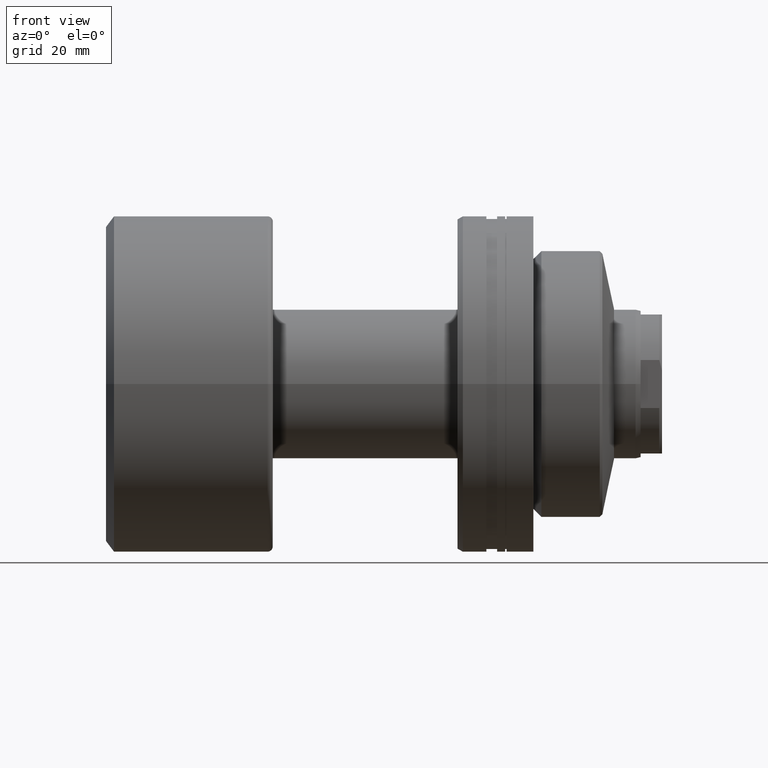
[diagram: clean part render]
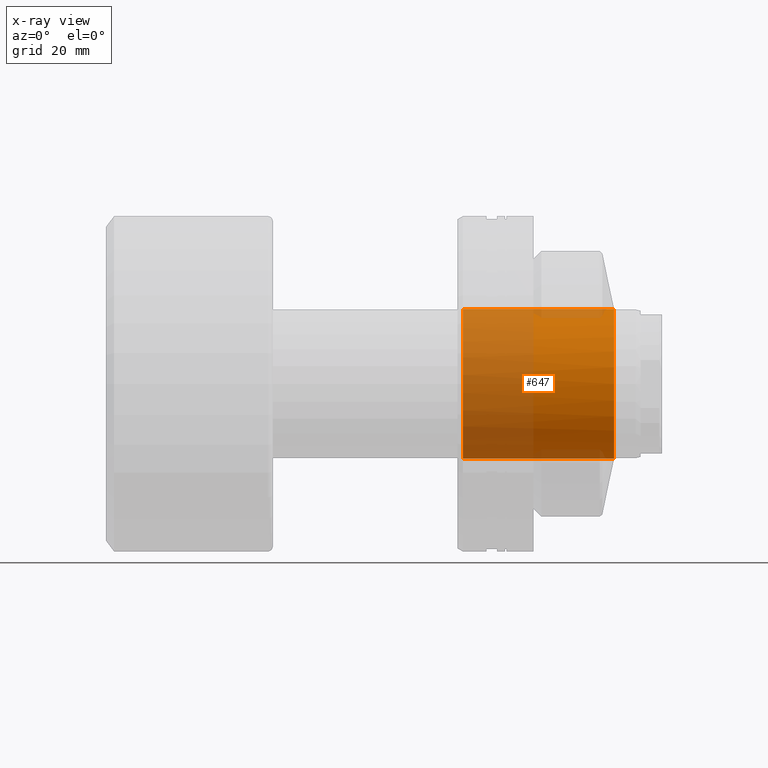
[diagram: x-ray — body ghosted, one internal face saturated and labeled with its STEP entity id]
A machine part, front view, then the same camera in x-ray: the body is ghosted and one INTERNAL B-rep face — a face not visible from any outside direction — is saturated and labeled: STEP entity #647.
In plain terms, the highlighted cylindrical surface (partial cylindrical patch) has radius 14 mm, axis along (1, 0, 0).
Its self-contained STEP definition (entity closure, byte-faithful):
#15 = EDGE_CURVE ( 'NONE', #2064, #1065, #684, .T. ) ;
#38 = CARTESIAN_POINT ( 'NONE',  ( -31.20000000000002061, 1.714505518806294835E-15, 14.00000000000000178 ) ) ;
#86 = DIRECTION ( 'NONE',  ( 0.000000000000000000, 0.000000000000000000, -1.000000000000000000 ) ) ;
#113 = FACE_OUTER_BOUND ( 'NONE', #657, .T. ) ;
#128 = CARTESIAN_POINT ( 'NONE',  ( -2.914285714286113826, 5.285403157867643656E-14, 0.000000000000000000 ) ) ;
#136 = AXIS2_PLACEMENT_3D ( 'NONE', #1539, #1021, #830 ) ;
#336 = CIRCLE ( 'NONE', #634, 14.00000000000000178 ) ;
#400 = CIRCLE ( 'NONE', #1552, 14.00000000000000178 ) ;
#423 = ORIENTED_EDGE ( 'NONE', *, *, #1071, .F. ) ;
#427 = EDGE_CURVE ( 'NONE', #1153, #1173, #400, .T. ) ;
#484 = CARTESIAN_POINT ( 'NONE',  ( -2.914285714286086737, -13.99999999999995026, 0.000000000000000000 ) ) ;
#490 = ORIENTED_EDGE ( 'NONE', *, *, #999, .F. ) ;
#632 = AXIS2_PLACEMENT_3D ( 'NONE', #1141, #1880, #811 ) ;
#634 = AXIS2_PLACEMENT_3D ( 'NONE', #128, #1401, #1551 ) ;
#647 = ADVANCED_FACE ( 'NONE', ( #113 ), #2029, .F. ) ;
#657 = EDGE_LOOP ( 'NONE', ( #1691, #1661, #490, #1641, #423 ) ) ;
#684 = CIRCLE ( 'NONE', #136, 14.00000000000000178 ) ;
#811 = DIRECTION ( 'NONE',  ( 0.000000000000000000, 0.000000000000000000, -1.000000000000000000 ) ) ;
#822 = CARTESIAN_POINT ( 'NONE',  ( -31.20000000000002061, 0.000000000000000000, 0.000000000000000000 ) ) ;
#830 = DIRECTION ( 'NONE',  ( 1.920586705545750655E-15, -1.000000000000000000, 0.000000000000000000 ) ) ;
#833 = DIRECTION ( 'NONE',  ( 1.000000000000000000, -0.000000000000000000, -0.000000000000000000 ) ) ;
#860 = CARTESIAN_POINT ( 'NONE',  ( -71.79797974644668557, 1.714505518806294835E-15, 14.00000000000000178 ) ) ;
#978 = LINE ( 'NONE', #860, #1165 ) ;
#999 = EDGE_CURVE ( 'NONE', #1065, #2088, #336, .T. ) ;
#1021 = DIRECTION ( 'NONE',  ( -1.000000000000000000, -1.931394410353556421E-15, 0.000000000000000000 ) ) ;
#1036 = CARTESIAN_POINT ( 'NONE',  ( -71.79797974644668557, 0.000000000000000000, -14.00000000000000178 ) ) ;
#1065 = VERTEX_POINT ( 'NONE', #484 ) ;
#1071 = EDGE_CURVE ( 'NONE', #1153, #2064, #2253, .T. ) ;
#1141 = CARTESIAN_POINT ( 'NONE',  ( -71.79797974644668557, 0.000000000000000000, 0.000000000000000000 ) ) ;
#1153 = VERTEX_POINT ( 'NONE', #1241 ) ;
#1165 = VECTOR ( 'NONE', #1685, 1000.000000000000000 ) ;
#1173 = VERTEX_POINT ( 'NONE', #38 ) ;
#1241 = CARTESIAN_POINT ( 'NONE',  ( -31.20000000000002061, 0.000000000000000000, -14.00000000000000178 ) ) ;
#1401 = DIRECTION ( 'NONE',  ( -1.000000000000000000, -1.931394410353556421E-15, 0.000000000000000000 ) ) ;
#1461 = EDGE_CURVE ( 'NONE', #1173, #2088, #978, .T. ) ;
#1539 = CARTESIAN_POINT ( 'NONE',  ( -2.914285714286113826, 5.285403157867643656E-14, 0.000000000000000000 ) ) ;
#1551 = DIRECTION ( 'NONE',  ( 1.920586705545750655E-15, -1.000000000000000000, 0.000000000000000000 ) ) ;
#1552 = AXIS2_PLACEMENT_3D ( 'NONE', #822, #1693, #86 ) ;
#1641 = ORIENTED_EDGE ( 'NONE', *, *, #15, .F. ) ;
#1661 = ORIENTED_EDGE ( 'NONE', *, *, #1461, .T. ) ;
#1685 = DIRECTION ( 'NONE',  ( 1.000000000000000000, -0.000000000000000000, -0.000000000000000000 ) ) ;
#1691 = ORIENTED_EDGE ( 'NONE', *, *, #427, .T. ) ;
#1693 = DIRECTION ( 'NONE',  ( -1.000000000000000000, 0.000000000000000000, 0.000000000000000000 ) ) ;
#1779 = VECTOR ( 'NONE', #833, 1000.000000000000000 ) ;
#1880 = DIRECTION ( 'NONE',  ( 1.000000000000000000, -0.000000000000000000, -0.000000000000000000 ) ) ;
#2029 = CYLINDRICAL_SURFACE ( 'NONE', #632, 14.00000000000000178 ) ;
#2064 = VERTEX_POINT ( 'NONE', #2310 ) ;
#2088 = VERTEX_POINT ( 'NONE', #2279 ) ;
#2253 = LINE ( 'NONE', #1036, #1779 ) ;
#2279 = CARTESIAN_POINT ( 'NONE',  ( -2.914285714286113826, 1.714505518806296807E-15, 14.00000000000000178 ) ) ;
#2310 = CARTESIAN_POINT ( 'NONE',  ( -2.914285714286113826, 6.162975822039154730E-30, -14.00000000000000178 ) ) ;